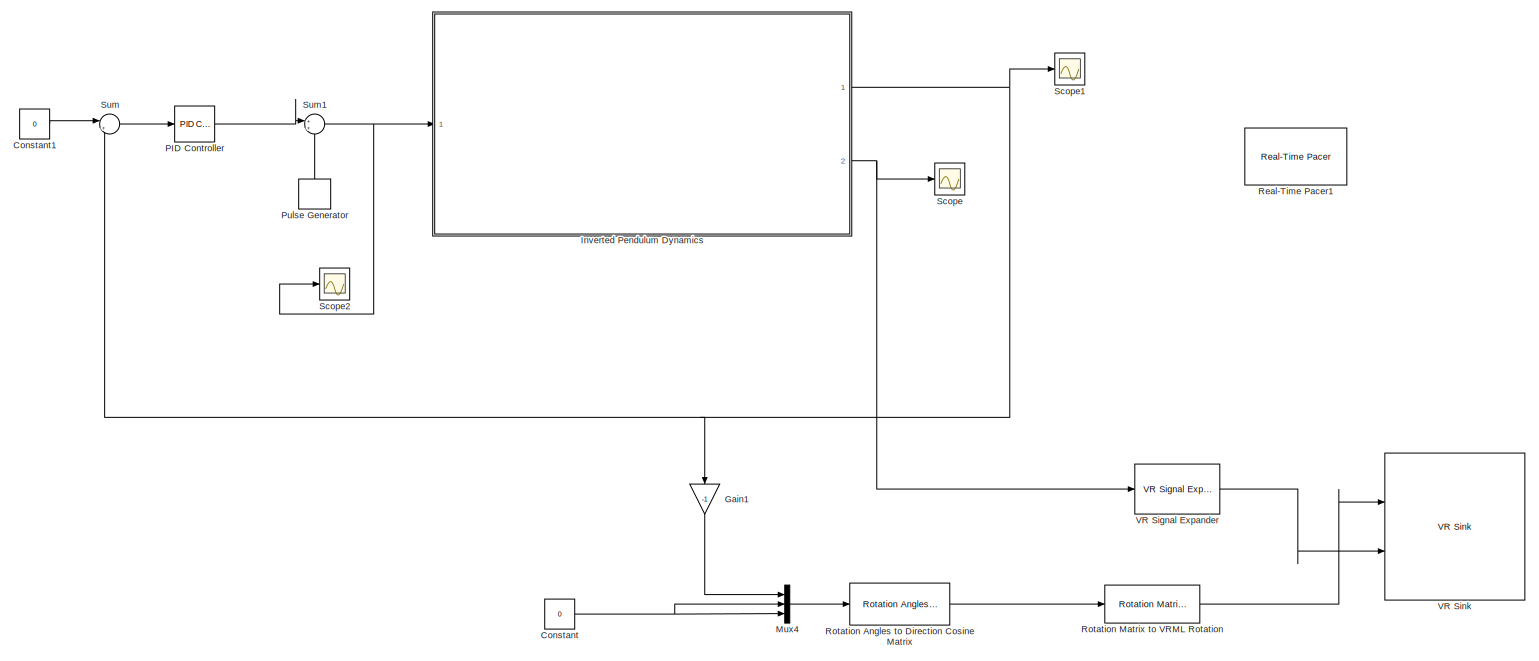
[diagram: root canvas - part 1/2, center side, full height]
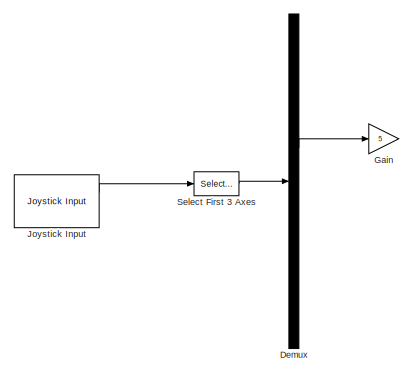
[diagram: root canvas - part 2/2, middle left region]
MODEL slx_3a5e31e406c3
KIND model
CONFIG AbsTol = auto
CONFIG EnableMultiTasking = off
CONFIG FixedStep = auto
CONFIG MaxStep = auto
CONFIG MinStep = auto
CONFIG RelTol = 1e-3
CONFIG SampleTimeConstraint = Unconstrained
CONFIG Solver = VariableStepAuto
CONFIG SolverName = VariableStepAuto
CONFIG StartTime = 0.0
CONFIG StopTime = 20.0
BLOCK [Constant] Constant
  Value = 0
BLOCK [Constant] Constant1
  Value = 0
BLOCK [Demux] Demux
  Commented = on
  DisplayOption = bar
  Ports = [1, 4]
BLOCK [Gain] Gain
  Commented = on
  Gain = 5
  OutDataTypeStr = Inherit: Inherit via internal rule
  ParamDataTypeStr = Inherit: Inherit via internal rule
  SaturateOnIntegerOverflow = off
BLOCK [Gain] Gain1
  Gain = -1
  OutDataTypeStr = Inherit: Inherit via internal rule
  ParamDataTypeStr = Inherit: Inherit via internal rule
  SaturateOnIntegerOverflow = off
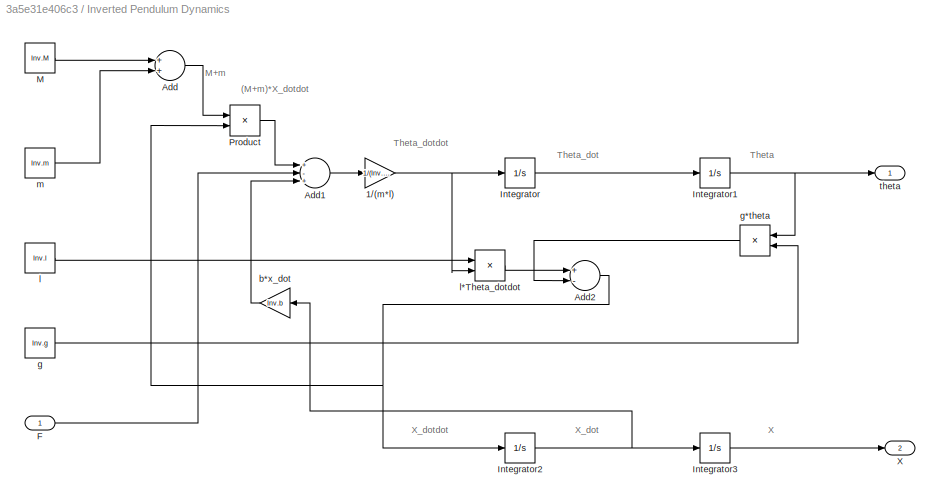
BLOCK [SubSystem] Inverted Pendulum Dynamics
  Ports = [1, 2]
  RequestExecContextInheritance = off
BLOCK [Gain] Inverted Pendulum Dynamics/1//(m*l)
  Gain = 1/(Inv.m * Inv.l)
  OutDataTypeStr = Inherit: Inherit via internal rule
  ParamDataTypeStr = Inherit: Inherit via internal rule
  SaturateOnIntegerOverflow = off
BLOCK [Sum] Inverted Pendulum Dynamics/Add
  InputSameDT = off
  OutDataTypeStr = Inherit: Inherit via internal rule
  Ports = [2, 1]
  SaturateOnIntegerOverflow = off
BLOCK [Sum] Inverted Pendulum Dynamics/Add1
  InputSameDT = off
  Inputs = +-+
  OutDataTypeStr = Inherit: Inherit via internal rule
  Ports = [3, 1]
  SaturateOnIntegerOverflow = off
BLOCK [Sum] Inverted Pendulum Dynamics/Add2
  InputSameDT = off
  Inputs = +-
  OutDataTypeStr = Inherit: Inherit via internal rule
  Ports = [2, 1]
  SaturateOnIntegerOverflow = off
BLOCK [Inport] Inverted Pendulum Dynamics/F
  IconDisplay = Port number
BLOCK [Integrator] Inverted Pendulum Dynamics/Integrator
  Ports = [1, 1]
BLOCK [Integrator] Inverted Pendulum Dynamics/Integrator1
  Ports = [1, 1]
BLOCK [Integrator] Inverted Pendulum Dynamics/Integrator2
  Ports = [1, 1]
BLOCK [Integrator] Inverted Pendulum Dynamics/Integrator3
  Ports = [1, 1]
BLOCK [Constant] Inverted Pendulum Dynamics/M
  Value = Inv.M
BLOCK [Product] Inverted Pendulum Dynamics/Product
  InputSameDT = off
  OutDataTypeStr = Inherit: Inherit via internal rule
  Ports = [2, 1]
  RndMeth = Floor
  SaturateOnIntegerOverflow = off
BLOCK [Outport] Inverted Pendulum Dynamics/X
  IconDisplay = Port number
  Port = 2
BLOCK [Gain] Inverted Pendulum Dynamics/b*x_dot
  Gain = Inv.b
  OutDataTypeStr = Inherit: Inherit via internal rule
  ParamDataTypeStr = Inherit: Inherit via internal rule
  SaturateOnIntegerOverflow = off
BLOCK [Constant] Inverted Pendulum Dynamics/g
  Value = Inv.g
BLOCK [Product] Inverted Pendulum Dynamics/g*theta
  InputSameDT = off
  OutDataTypeStr = Inherit: Inherit via internal rule
  Ports = [2, 1]
  RndMeth = Floor
  SaturateOnIntegerOverflow = off
BLOCK [Constant] Inverted Pendulum Dynamics/l
  Value = Inv.l
BLOCK [Product] Inverted Pendulum Dynamics/l*Theta_dotdot
  InputSameDT = off
  OutDataTypeStr = Inherit: Inherit via internal rule
  Ports = [2, 1]
  RndMeth = Floor
  SaturateOnIntegerOverflow = off
BLOCK [Constant] Inverted Pendulum Dynamics/m
  Value = Inv.m
BLOCK [Outport] Inverted Pendulum Dynamics/theta
  IconDisplay = Port number
BLOCK [Reference] Joystick Input  REF=vrlib/Joystick Input
  Commented = on
  Ports = [0, 2]
  SourceBlock = vrlib/Joystick Input
  SourceProductBaseCode = VR
  SourceProductName = Simulink 3D Animation
  SourceType = Joystick Input
BLOCK [Mux] Mux4
  DisplayOption = bar
  Inputs = 3
  Ports = [3, 1]
BLOCK [Reference] PID Controller  REF=simulink/Continuous/PID Controller
  Ports = [1, 1]
  SourceBlock = simulink/Continuous/PID Controller
  SourceProductBaseCode = SL
  SourceProductName = Simulink
  SourceType = PID 1dof
BLOCK [DiscretePulseGenerator] Pulse Generator
  Amplitude = 1000
  Period = 1000
  PhaseDelay = 7
  Ports = [0, 1]
  PulseType = Time based
  PulseWidth = 0.001
BLOCK [Reference] Real-Time Pacer1  REF=realtime_pacer_lib/Real-Time Pacer
  Commented = on
  Ports = []
  SourceBlock = realtime_pacer_lib/Real-Time Pacer
  SourceType = RealTime_Pacer
BLOCK [Reference] Rotation Angles to Direction Cosine Matrix  REF=sharedtransform/Rotation Angles to
Direction Cosine Matrix
  AttributesFormatString = Rotation Order: %<rotationOrder>
  Ports = [1, 1]
  SourceBlock = sharedtransform/Rotation Angles to\nDirection Cosine Matrix
  SourceProductBaseCode = AE
  SourceProductName = Aerospace Blockset
  SourceType = Ang2DCM
BLOCK [Reference] Rotation Matrix to VRML Rotation  REF=vrlib/Utilities/Rotation Matrix
to VRML Rotation
  Ports = [1, 1]
  SourceBlock = vrlib/Utilities/Rotation Matrix\nto VRML Rotation
  SourceProductBaseCode = VR
  SourceProductName = Simulink 3D Animation
  SourceType = Rotation Matrix to VRML Rotation
BLOCK [Scope] Scope
  Floating = off
  NumInputPorts = 1
  Ports = [1]
  ScopeSpecificationString = Simulink.scopes.TimeScopeBlockCfg('CurrentConfiguration', extmgr.ConfigurationSet(extmgr.Configuration('Core','General UI',true),extmgr.Configuration('Core','Source UI',true),extmgr.Configuration('Sources','WiredSimulink',true,'DataLoggingVariableName','ScopeData1'),extmgr.Configuration('Visuals','Time Domain',true,'SerializedDisplays',{struct('MinYLimReal','-0.08565','MaxYLimReal','0.24154','YLab...<+1387ch>
BLOCK [Scope] Scope1
  Floating = off
  NumInputPorts = 1
  Ports = [1]
  ScopeSpecificationString = Simulink.scopes.TimeScopeBlockCfg('CurrentConfiguration', extmgr.ConfigurationSet(extmgr.Configuration('Core','General UI',true),extmgr.Configuration('Core','Source UI',true),extmgr.Configuration('Sources','WiredSimulink',true),extmgr.Configuration('Visuals','Time Domain',true,'SerializedDisplays',{struct('MinYLimReal','-0.52227','MaxYLimReal','1.60682','YLabelReal','','MinYLimMag','0.00000','MaxY...<+1348ch>
BLOCK [Scope] Scope2
  Floating = off
  NumInputPorts = 1
  Ports = [1]
  ScopeSpecificationString = Simulink.scopes.TimeScopeBlockCfg('CurrentConfiguration', extmgr.ConfigurationSet(extmgr.Configuration('Core','General UI',true),extmgr.Configuration('Core','Source UI',true),extmgr.Configuration('Sources','WiredSimulink',true,'DataLoggingVariableName','ScopeData2'),extmgr.Configuration('Visuals','Time Domain',true,'SerializedDisplays',{struct('MinYLimReal','-1342.16799','MaxYLimReal','1260.24089'...<+1412ch>
BLOCK [Selector] Select First 3 Axes
  AttributesFormatString = (Joystick - dependent)
  Commented = on
  IndexOptions = Index vector (dialog)
  Indices = [1 2 3 4]
  InputPortWidth = 5
  OutputSizes = 1
  Ports = [1, 1]
BLOCK [Sum] Sum
  IconShape = round
  InputSameDT = off
  Inputs = |+-
  OutDataTypeStr = Inherit: Inherit via internal rule
  Ports = [2, 1]
  SaturateOnIntegerOverflow = off
BLOCK [Sum] Sum1
  IconShape = round
  InputSameDT = off
  OutDataTypeStr = Inherit: Inherit via internal rule
  Ports = [2, 1]
  SaturateOnIntegerOverflow = off
BLOCK [Reference] VR Signal Expander  REF=vrlib/VR Signal Expander
  Ports = [1, 1]
  SourceBlock = vrlib/VR Signal Expander
  SourceProductBaseCode = VR
  SourceProductName = Simulink 3D Animation
  SourceType = VR Signal Expander
BLOCK [Reference] VR Sink  REF=vrlib/VR Sink
  InstantiateOnLoad = on
  Ports = [2]
  SourceBlock = vrlib/VR Sink
  SourceProductBaseCode = VR
  SourceProductName = Simulink 3D Animation
  SourceType = Virtual Reality Sink
ANNOTATION Inverted Pendulum Dynamics: (M+m)*X_dotdot
ANNOTATION Inverted Pendulum Dynamics: M+m
ANNOTATION Inverted Pendulum Dynamics: Theta
ANNOTATION Inverted Pendulum Dynamics: Theta_dot
ANNOTATION Inverted Pendulum Dynamics: Theta_dotdot
ANNOTATION Inverted Pendulum Dynamics: X
ANNOTATION Inverted Pendulum Dynamics: X_dot
ANNOTATION Inverted Pendulum Dynamics: X_dotdot
LINE Constant1:1 -> Sum:1
NET Constant:1 -> Mux4:2, Mux4:3
LINE Demux:2 -> Gain:1
LINE Gain1:1 -> Mux4:1
NET Inverted Pendulum Dynamics/1//(m*l):1 -> Inverted Pendulum Dynamics/Integrator:1, Inverted Pendulum Dynamics/l*Theta_dotdot:2
LINE Inverted Pendulum Dynamics/Add1:1 -> Inverted Pendulum Dynamics/1//(m*l):1
NET Inverted Pendulum Dynamics/Add2:1 -> Inverted Pendulum Dynamics/Integrator2:1, Inverted Pendulum Dynamics/Product:2
LINE Inverted Pendulum Dynamics/Add:1 -> Inverted Pendulum Dynamics/Product:1
LINE Inverted Pendulum Dynamics/F:1 -> Inverted Pendulum Dynamics/Add1:2
NET Inverted Pendulum Dynamics/Integrator1:1 -> Inverted Pendulum Dynamics/g*theta:1, Inverted Pendulum Dynamics/theta:1
NET Inverted Pendulum Dynamics/Integrator2:1 -> Inverted Pendulum Dynamics/Integrator3:1, Inverted Pendulum Dynamics/b*x_dot:1
LINE Inverted Pendulum Dynamics/Integrator3:1 -> Inverted Pendulum Dynamics/X:1
LINE Inverted Pendulum Dynamics/Integrator:1 -> Inverted Pendulum Dynamics/Integrator1:1
LINE Inverted Pendulum Dynamics/M:1 -> Inverted Pendulum Dynamics/Add:1
LINE Inverted Pendulum Dynamics/Product:1 -> Inverted Pendulum Dynamics/Add1:1
LINE Inverted Pendulum Dynamics/b*x_dot:1 -> Inverted Pendulum Dynamics/Add1:3
LINE Inverted Pendulum Dynamics/g*theta:1 -> Inverted Pendulum Dynamics/Add2:2
LINE Inverted Pendulum Dynamics/g:1 -> Inverted Pendulum Dynamics/g*theta:2
LINE Inverted Pendulum Dynamics/l*Theta_dotdot:1 -> Inverted Pendulum Dynamics/Add2:1
LINE Inverted Pendulum Dynamics/l:1 -> Inverted Pendulum Dynamics/l*Theta_dotdot:1
LINE Inverted Pendulum Dynamics/m:1 -> Inverted Pendulum Dynamics/Add:2
NET Inverted Pendulum Dynamics:1 -> Gain1:1, Scope1:1, Sum:2
NET Inverted Pendulum Dynamics:2 -> Scope:1, VR Signal Expander:1
LINE Joystick Input:1 -> Select First 3 Axes:1
LINE Mux4:1 -> Rotation Angles to Direction Cosine Matrix:1
LINE PID Controller:1 -> Sum1:1
LINE Pulse Generator:1 -> Sum1:2
LINE Rotation Angles to Direction Cosine Matrix:1 -> Rotation Matrix to VRML Rotation:1
LINE Rotation Matrix to VRML Rotation:1 -> VR Sink:1
LINE Select First 3 Axes:1 -> Demux:1
NET Sum1:1 -> Inverted Pendulum Dynamics:1, Scope2:1
LINE Sum:1 -> PID Controller:1
LINE VR Signal Expander:1 -> VR Sink:2
note: NET lines group one-source signal fan-out (src -> all destinations, sorted); 1:1 wires keep LINE
